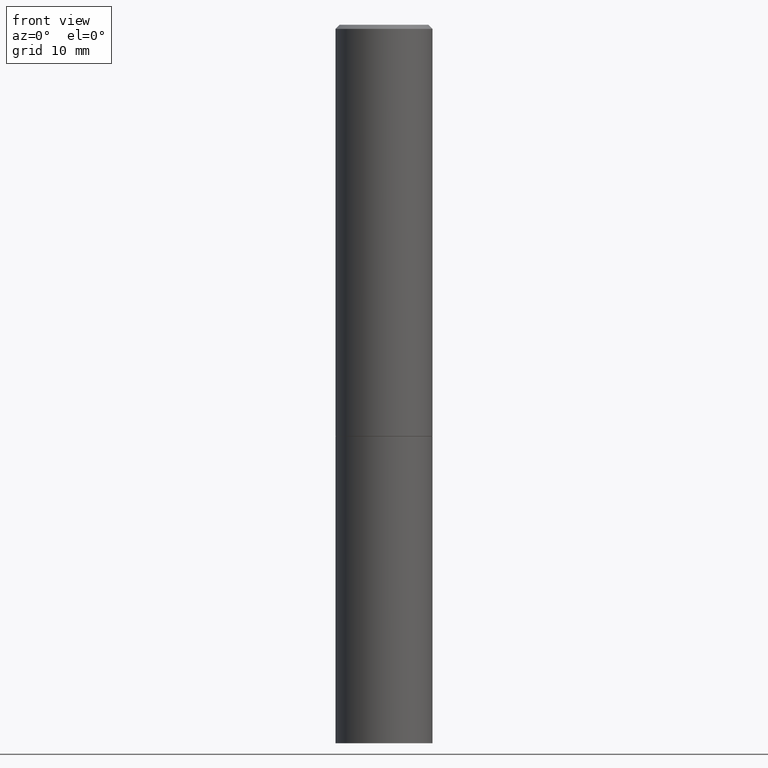
[diagram: clean part render]
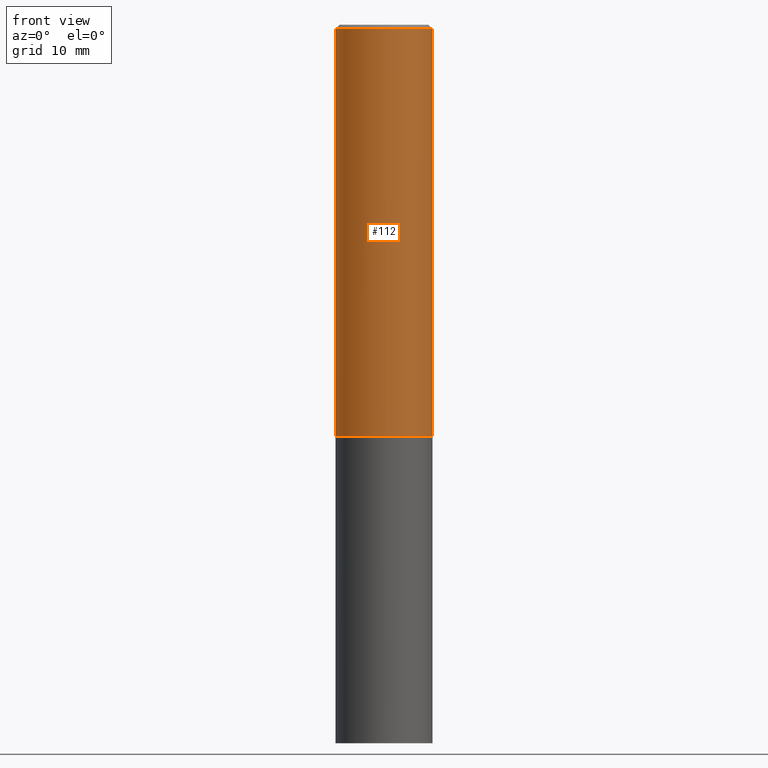
[diagram: same view with one face highlighted and labeled with its STEP entity id]
A machine part, front view. The second image highlights one B-rep face of the part: STEP entity #112.
In plain terms, the highlighted cylindrical surface (partial cylindrical patch) has radius 5.9995 mm, axis along (-0, 0, 1).
Its self-contained STEP definition (entity closure, byte-faithful):
#3 = ORIENTED_EDGE ( 'NONE', *, *, #325, .F. ) ;
#6 = ORIENTED_EDGE ( 'NONE', *, *, #283, .F. ) ;
#10 = LINE ( 'NONE', #140, #226 ) ;
#15 = CIRCLE ( 'NONE', #35, 0.2361999999999999933 ) ;
#17 = DIRECTION ( 'NONE',  ( 1.000000000000000000, -6.982962677686265133E-15, 0.000000000000000000 ) ) ;
#27 = VERTEX_POINT ( 'NONE', #257 ) ;
#35 = AXIS2_PLACEMENT_3D ( 'NONE', #244, #185, #17 ) ;
#36 = CYLINDRICAL_SURFACE ( 'NONE', #45, 0.2361999999999998545 ) ;
#45 = AXIS2_PLACEMENT_3D ( 'NONE', #93, #207, #291 ) ;
#53 = CARTESIAN_POINT ( 'NONE',  ( 0.2361999999999999933, -8.656080535259919350E-15, -2.006799999999999695 ) ) ;
#62 = FACE_OUTER_BOUND ( 'NONE', #279, .T. ) ;
#74 = AXIS2_PLACEMENT_3D ( 'NONE', #134, #227, #336 ) ;
#86 = DIRECTION ( 'NONE',  ( -2.445468806185136877E-29, 3.491481338843145188E-15, 1.000000000000000000 ) ) ;
#93 = CARTESIAN_POINT ( 'NONE',  ( 0.000000000000000000, 0.000000000000000000, 0.000000000000000000 ) ) ;
#108 = ORIENTED_EDGE ( 'NONE', *, *, #364, .T. ) ;
#112 = ADVANCED_FACE ( 'NONE', ( #62 ), #36, .T. ) ;
#116 = ORIENTED_EDGE ( 'NONE', *, *, #232, .T. ) ;
#134 = CARTESIAN_POINT ( 'NONE',  ( 4.890937612370280165E-31, -6.982962677686301470E-17, -0.02000000000000003164 ) ) ;
#140 = CARTESIAN_POINT ( 'NONE',  ( 0.2361999999999998545, -1.649375784469495145E-15, 1.151752954442999387E-29 ) ) ;
#164 = VERTEX_POINT ( 'NONE', #268 ) ;
#185 = DIRECTION ( 'NONE',  ( -2.445468806185136597E-29, 3.491481338843145583E-15, 1.000000000000000000 ) ) ;
#188 = CARTESIAN_POINT ( 'NONE',  ( -0.2361999999999998545, 1.678301941865355605E-15, -1.161852468318208056E-29 ) ) ;
#189 = DIRECTION ( 'NONE',  ( -2.445468806185136877E-29, 3.491481338843145188E-15, 1.000000000000000000 ) ) ;
#196 = CARTESIAN_POINT ( 'NONE',  ( -0.2362000000000000210, -1.859965246918283512E-15, -2.006799999999999695 ) ) ;
#198 = VECTOR ( 'NONE', #189, 39.37007874015748143 ) ;
#207 = DIRECTION ( 'NONE',  ( -2.445468806185136597E-29, 3.491481338843145583E-15, 1.000000000000000000 ) ) ;
#226 = VECTOR ( 'NONE', #86, 39.37007874015748143 ) ;
#227 = DIRECTION ( 'NONE',  ( -2.445468806185136597E-29, 3.491481338843145583E-15, 1.000000000000000000 ) ) ;
#232 = EDGE_CURVE ( 'NONE', #363, #285, #15, .T. ) ;
#244 = CARTESIAN_POINT ( 'NONE',  ( 4.907566800252331482E-29, -7.006704750790423614E-15, -2.006799999999999695 ) ) ;
#249 = LINE ( 'NONE', #188, #198 ) ;
#257 = CARTESIAN_POINT ( 'NONE',  ( -0.2361999999999997157, 1.579546157692631255E-15, -0.02000000000000003164 ) ) ;
#268 = CARTESIAN_POINT ( 'NONE',  ( 0.2361999999999997157, -1.690279253850496996E-15, -0.02000000000000003164 ) ) ;
#279 = EDGE_LOOP ( 'NONE', ( #6, #116, #108, #3 ) ) ;
#283 = EDGE_CURVE ( 'NONE', #363, #27, #249, .T. ) ;
#285 = VERTEX_POINT ( 'NONE', #53 ) ;
#291 = DIRECTION ( 'NONE',  ( 1.000000000000000000, -6.982962677686266711E-15, 4.876176775795935793E-29 ) ) ;
#314 = CIRCLE ( 'NONE', #74, 0.2361999999999997157 ) ;
#325 = EDGE_CURVE ( 'NONE', #27, #164, #314, .T. ) ;
#336 = DIRECTION ( 'NONE',  ( 1.000000000000000000, -6.982962677686266711E-15, 0.000000000000000000 ) ) ;
#363 = VERTEX_POINT ( 'NONE', #196 ) ;
#364 = EDGE_CURVE ( 'NONE', #285, #164, #10, .T. ) ;